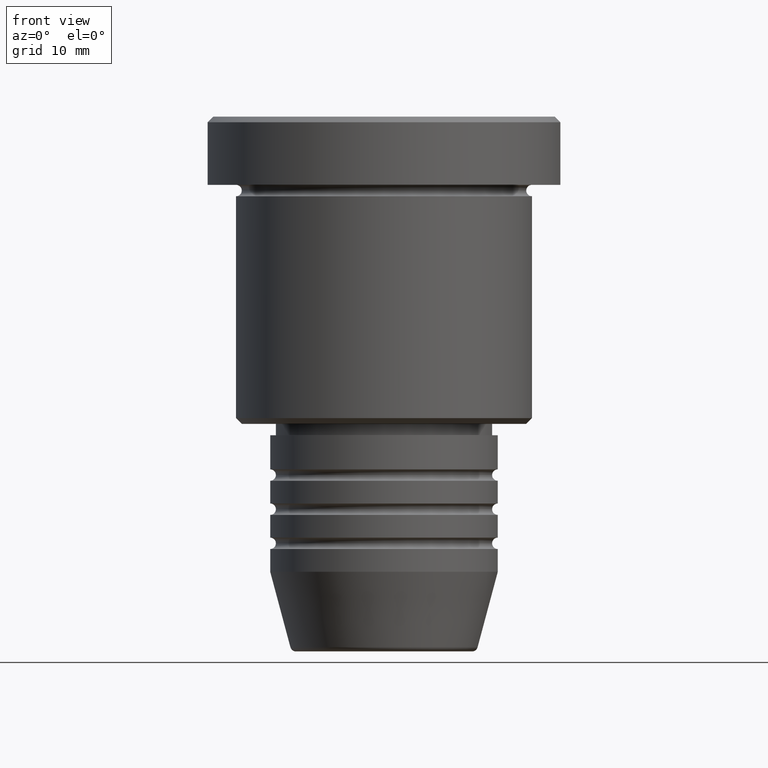
[diagram: clean part render]
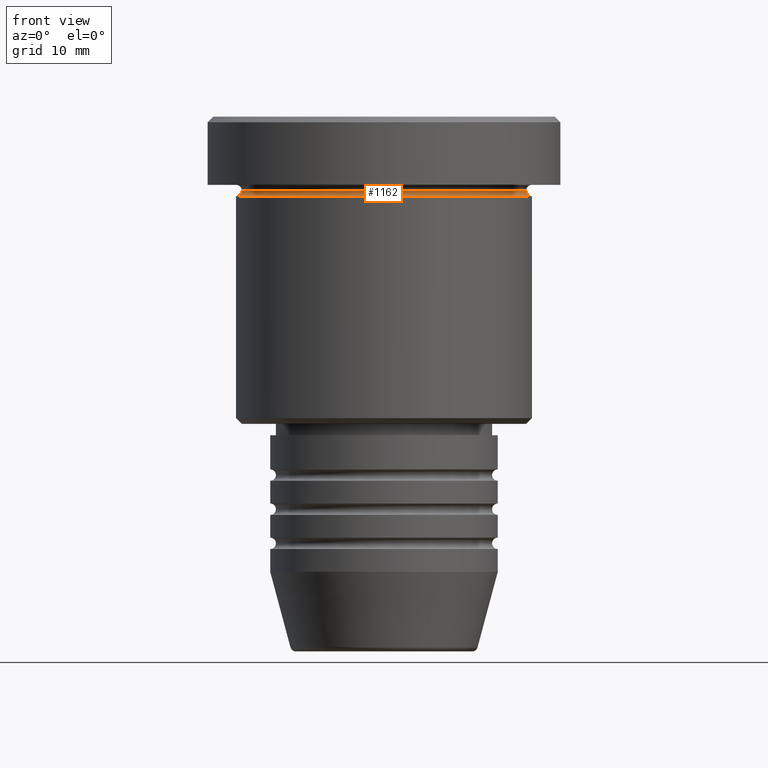
[diagram: same view with one face highlighted and labeled with its STEP entity id]
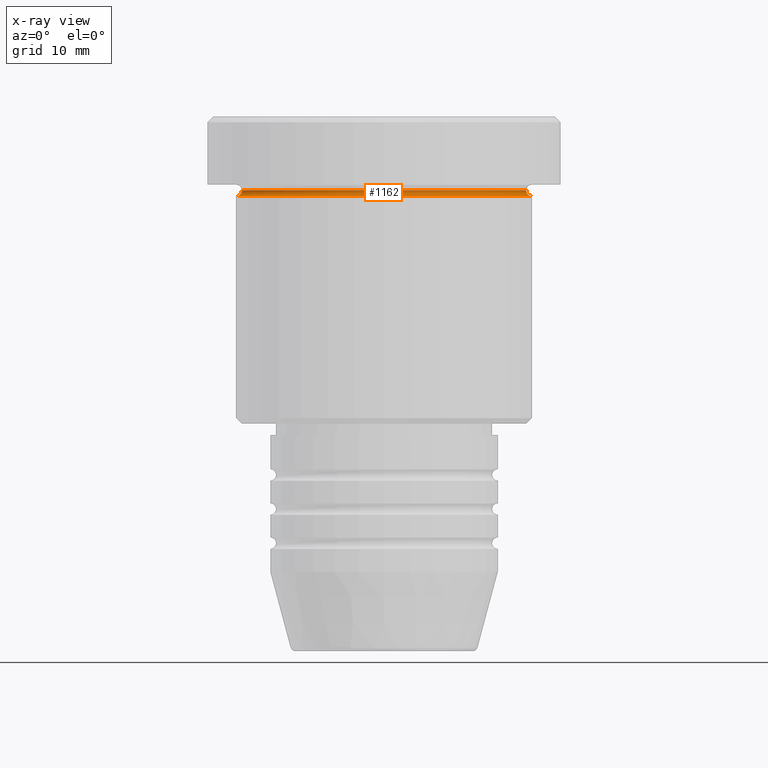
[diagram: x-ray of the same camera — body ghosted, the highlighted face saturated]
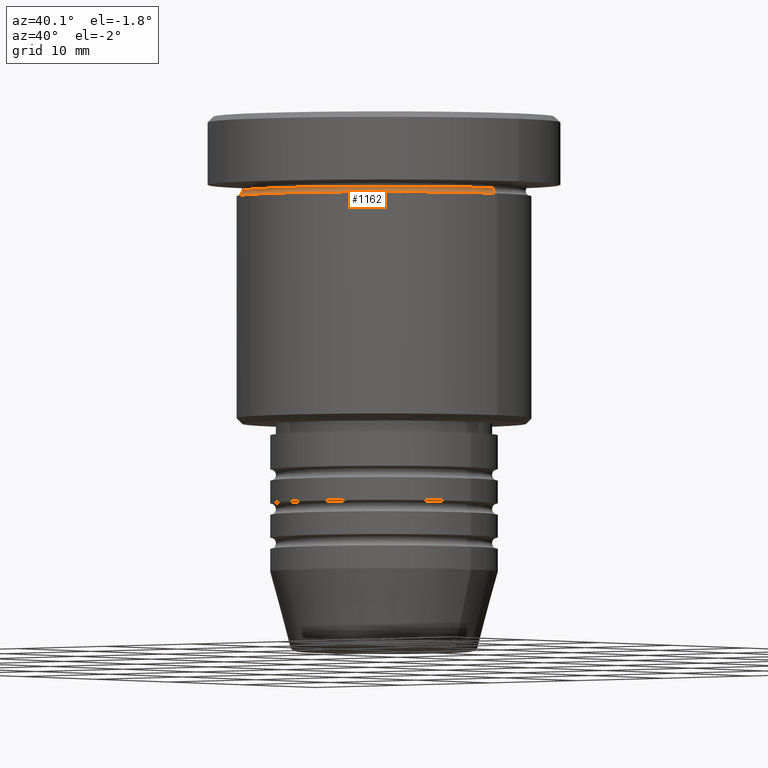
[diagram: same view with one face highlighted and labeled with its STEP entity id]
A machine part, front view. The second image highlights one B-rep face of the part: STEP entity #1162.
The next image is the same camera in x-ray: the body ghosted, the highlighted face saturated — about 0% of this face is hidden behind the body in this view.
A second angle (auxiliary view) of the same face is appended — the face is thin or edge-on in the first view.
In plain terms, the highlighted toroidal blend (fillet) surface has major radius 13 mm and minor (blend) radius 0.5 mm.
Its self-contained STEP definition (entity closure, byte-faithful):
#23 = DIRECTION ( 'NONE',  ( 0.000000000000000000, -1.000000000000000000, 0.000000000000000000 ) ) ;
#53 = CARTESIAN_POINT ( 'NONE',  ( 0.000000000000000000, 0.000000000000000000, -6.499999999999995559 ) ) ;
#78 = CIRCLE ( 'NONE', #891, 12.49999999999999822 ) ;
#95 = AXIS2_PLACEMENT_3D ( 'NONE', #324, #592, #226 ) ;
#134 = AXIS2_PLACEMENT_3D ( 'NONE', #929, #23, #287 ) ;
#142 = ORIENTED_EDGE ( 'NONE', *, *, #939, .F. ) ;
#155 = DIRECTION ( 'NONE',  ( -0.000000000000000000, -0.000000000000000000, 1.000000000000000000 ) ) ;
#156 = CARTESIAN_POINT ( 'NONE',  ( 0.000000000000000000, 0.000000000000000000, -6.499999999999995559 ) ) ;
#226 = DIRECTION ( 'NONE',  ( -1.000000000000000000, 1.224646799147353454E-16, 0.000000000000000000 ) ) ;
#287 = DIRECTION ( 'NONE',  ( 0.000000000000000000, 0.000000000000000000, -1.000000000000000000 ) ) ;
#303 = EDGE_CURVE ( 'NONE', #346, #661, #1176, .T. ) ;
#307 = CARTESIAN_POINT ( 'NONE',  ( -12.49999999999999822, 1.561424668912875308E-15, -6.499999999999995559 ) ) ;
#324 = CARTESIAN_POINT ( 'NONE',  ( -13.00000000000000000, 1.592040838891559095E-15, -6.499999999999995559 ) ) ;
#346 = VERTEX_POINT ( 'NONE', #905 ) ;
#371 = TOROIDAL_SURFACE ( 'NONE', #688, 13.00000000000000000, 0.5000000000000000000 ) ;
#392 = DIRECTION ( 'NONE',  ( -0.000000000000000000, -0.000000000000000000, 1.000000000000000000 ) ) ;
#412 = DIRECTION ( 'NONE',  ( 1.000000000000000000, 0.000000000000000000, 0.000000000000000000 ) ) ;
#508 = DIRECTION ( 'NONE',  ( 1.000000000000000000, 0.000000000000000000, 0.000000000000000000 ) ) ;
#526 = CARTESIAN_POINT ( 'NONE',  ( 12.49999999999999822, 0.000000000000000000, -6.499999999999995559 ) ) ;
#543 = VERTEX_POINT ( 'NONE', #307 ) ;
#563 = AXIS2_PLACEMENT_3D ( 'NONE', #964, #155, #508 ) ;
#592 = DIRECTION ( 'NONE',  ( 1.224646799147353207E-16, 1.000000000000000000, 0.000000000000000000 ) ) ;
#604 = ORIENTED_EDGE ( 'NONE', *, *, #629, .T. ) ;
#608 = ORIENTED_EDGE ( 'NONE', *, *, #1136, .F. ) ;
#629 = EDGE_CURVE ( 'NONE', #543, #346, #708, .T. ) ;
#636 = CIRCLE ( 'NONE', #134, 0.5000000000000004441 ) ;
#646 = ORIENTED_EDGE ( 'NONE', *, *, #303, .T. ) ;
#661 = VERTEX_POINT ( 'NONE', #875 ) ;
#688 = AXIS2_PLACEMENT_3D ( 'NONE', #53, #392, #855 ) ;
#694 = EDGE_LOOP ( 'NONE', ( #608, #604, #646, #142 ) ) ;
#708 = CIRCLE ( 'NONE', #95, 0.5000000000000004441 ) ;
#855 = DIRECTION ( 'NONE',  ( 1.000000000000000000, 0.000000000000000000, 0.000000000000000000 ) ) ;
#870 = VERTEX_POINT ( 'NONE', #526 ) ;
#875 = CARTESIAN_POINT ( 'NONE',  ( 13.00000000000000000, 0.000000000000000000, -6.999999999999995559 ) ) ;
#891 = AXIS2_PLACEMENT_3D ( 'NONE', #156, #1141, #412 ) ;
#905 = CARTESIAN_POINT ( 'NONE',  ( -13.00000000000000000, 1.592040838891559095E-15, -6.999999999999995559 ) ) ;
#929 = CARTESIAN_POINT ( 'NONE',  ( 13.00000000000000000, 0.000000000000000000, -6.499999999999995559 ) ) ;
#939 = EDGE_CURVE ( 'NONE', #870, #661, #636, .T. ) ;
#964 = CARTESIAN_POINT ( 'NONE',  ( 0.000000000000000000, 0.000000000000000000, -6.999999999999995559 ) ) ;
#1037 = FACE_OUTER_BOUND ( 'NONE', #694, .T. ) ;
#1136 = EDGE_CURVE ( 'NONE', #543, #870, #78, .T. ) ;
#1141 = DIRECTION ( 'NONE',  ( -0.000000000000000000, -0.000000000000000000, 1.000000000000000000 ) ) ;
#1162 = ADVANCED_FACE ( 'NONE', ( #1037 ), #371, .F. ) ;
#1176 = CIRCLE ( 'NONE', #563, 13.00000000000000000 ) ;